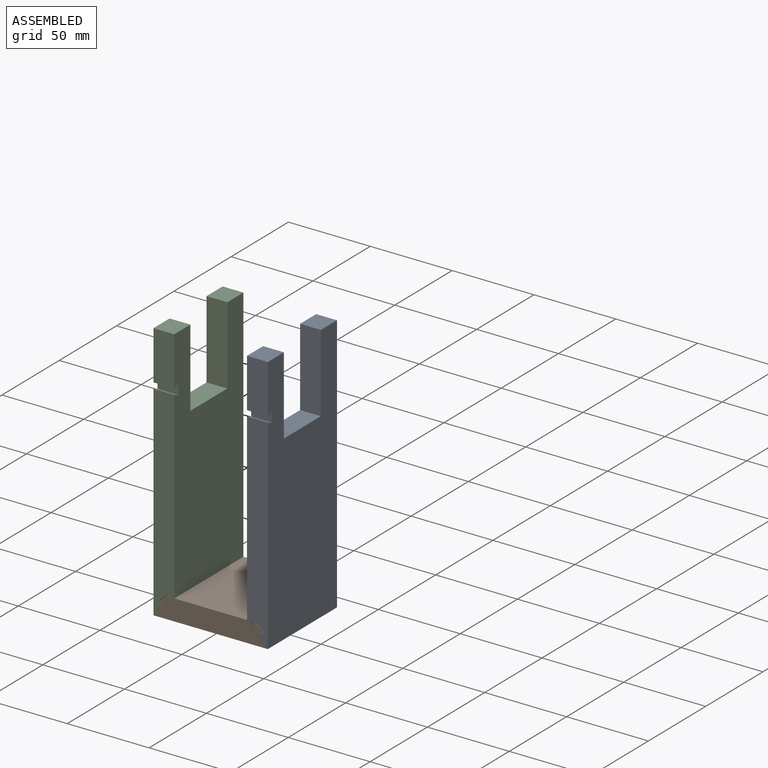
[diagram: assembled view]
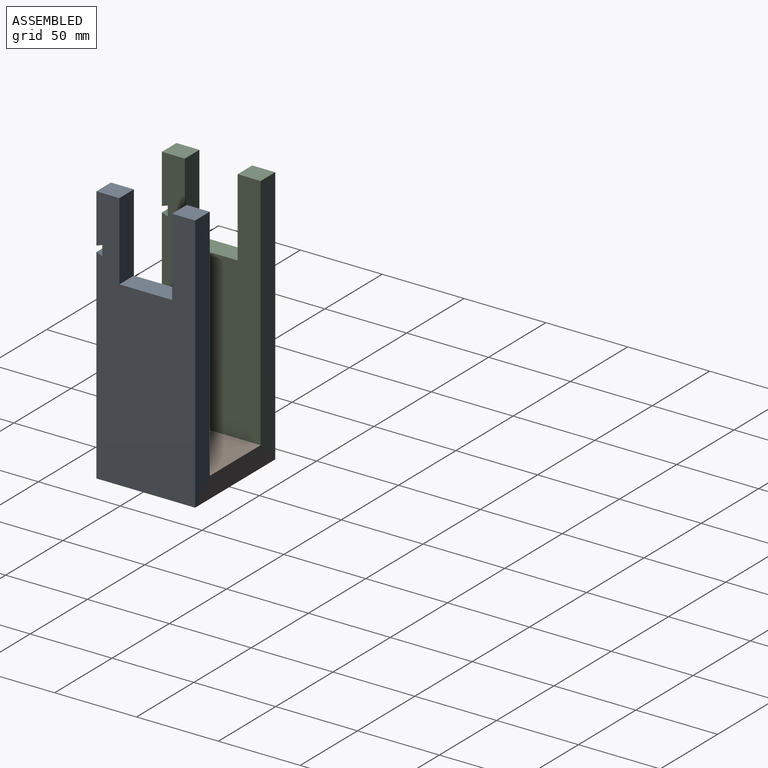
[diagram: assembled view, second angle]
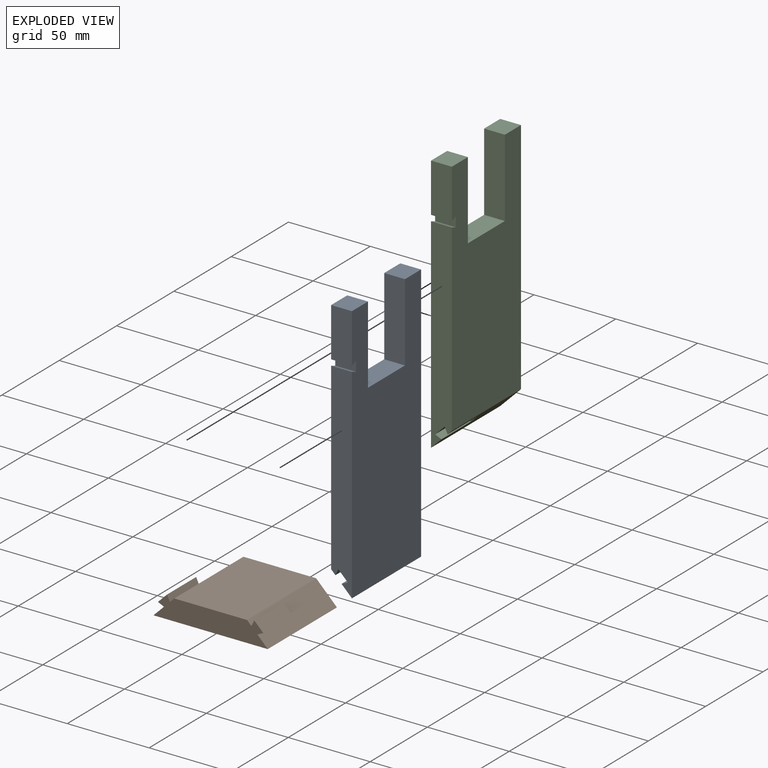
[diagram: exploded view]
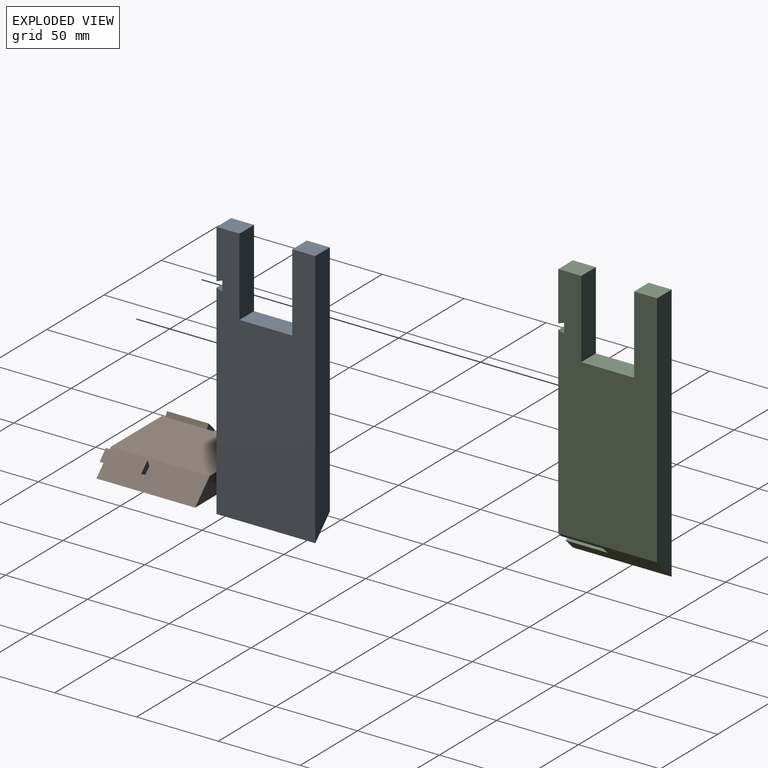
[diagram: exploded view, second angle]
ASSEMBLY  parts=3 mates=4
PART A: 20 faces, bbox 158.6x12.7x60.3 mm
  f0: plane 29.97x12.7mm, normal (0,0,1), area 380.6mm2, adj f1,f6,f12,f18
  f1: plane 145.87x60.33mm, normal (0,-1,0), area 7246.6mm2, adj f0,f2,f3,f4,f5,f7,f8,f9
  f2: plane 125.04x12.7mm, normal (0,0,1), area 1480.7mm2, adj f1,f5,f6,f13,f14,f15,f19
  f3: plane 12.71x0.26mm, normal (-1,0,0), area 3.2mm2, adj f1,f4,f6,f8
  f4: plane 47.63x12.7mm, normal (0,0,-1), area 604.8mm2, adj f1,f3,f6,f12
  f5: plane 60.33x12.7mm, normal (0.71,-0.71,0), area 946.7mm2, adj f1,f2,f6,f11,f13,f15,f16
  f6: plane 158.57x60.33mm, normal (0,1,0), area 8012.8mm2, adj f0,f2,f3,f4,f5,f7,f8,f9
  f7: plane 14.04x12.7mm, normal (-1,0,0), area 178.3mm2, adj f1,f6,f10,f11
  f8: plane 31.76x12.71mm, normal (-1,0,0), area 403.2mm2, adj f1,f3,f6,f9
  f9: plane 12.71x0.26mm, normal (-1,0,0), area 3.2mm2, adj f1,f6,f8,f10
  f10: plane 47.63x12.7mm, normal (0,0,1), area 604.8mm2, adj f1,f6,f7,f9
  f11: plane 158.57x12.7mm, normal (0,0,-1), area 1933.2mm2, adj f1,f5,f6,f7
  f12: plane 14.04x12.7mm, normal (-1,0,0), area 178.3mm2, adj f0,f1,f4,f6
  f13: plane 25.65x3.8mm, normal (-0.91,-0.42,0), area 107.5mm2, adj f2,f5,f14,f16
  f14: plane 25.65x5.8mm, normal (0.71,-0.71,0), area 210.4mm2, adj f2,f13,f15,f16
  f15: plane 25.65x3.8mm, normal (0.42,0.91,0), area 107.5mm2, adj f2,f5,f14,f16
  f16: plane 7.57x7.57mm, normal (0,0,1), area 26.6mm2, adj f5,f13,f14,f15
  f17: plane 12.7x6.14mm, normal (0,0,1), area 78mm2, adj f1,f6,f18,f19
  f18: plane 12.7x3.56mm, normal (0.94,0,-0.34), area 48.1mm2, adj f0,f1,f6,f17
  f19: plane 12.7x3.56mm, normal (-0.94,0,-0.34), area 48.1mm2, adj f1,f2,f6,f17
PART B: 14 faces, bbox 69.9x60.3x13.7 mm
  f0: plane 60.33x12.7mm, normal (0.71,0,0.71), area 954.5mm2, adj f1,f2,f3,f4,f11,f12,f13
  f1: plane 69.85x12.7mm, normal (0,1,0), area 725.8mm2, adj f0,f2,f3,f5
  f2: plane 69.85x60.33mm, normal (0,0,-1), area 4214.1mm2, adj f0,f1,f4,f5
  f3: plane 60.33x44.45mm, normal (0,0,1), area 2681.7mm2, adj f0,f1,f4,f5
  f4: plane 69.85x13.68mm, normal (0,-1,0), area 775.1mm2, adj f0,f2,f3,f5,f6,f7,f8,f10
  f5: plane 60.33x12.7mm, normal (-0.71,0,0.71), area 954.5mm2, adj f1,f2,f3,f4,f6,f8,f9
  f6: plane 25.4x3.67mm, normal (0.91,0,0.42), area 103mm2, adj f4,f5,f7,f9
  f7: plane 25.4x5.55mm, normal (-0.71,0,0.71), area 199.5mm2, adj f4,f6,f8,f9
  f8: plane 25.4x3.67mm, normal (-0.42,0,-0.91), area 103mm2, adj f4,f5,f7,f9
  f9: plane 7.27x7.27mm, normal (0,1,0), area 24.6mm2, adj f5,f6,f7,f8
  f10: plane 25.4x5.55mm, normal (0.71,0,0.71), area 199.5mm2, adj f4,f11,f12,f13
  f11: plane 25.4x3.67mm, normal (-0.91,0,0.42), area 103mm2, adj f0,f4,f10,f13
  f12: plane 25.4x3.67mm, normal (0.42,0,-0.91), area 103mm2, adj f0,f4,f10,f13
  f13: plane 7.27x7.27mm, normal (0,1,0), area 24.6mm2, adj f0,f10,f11,f12
PART C: 20 faces, bbox 158.6x12.7x60.3 mm
  f0: plane 125.04x12.7mm, normal (0,0,-1), area 1480.7mm2, adj f1,f5,f6,f13,f14,f15,f18
  f1: plane 145.87x60.33mm, normal (0,-1,0), area 7246.6mm2, adj f0,f2,f3,f4,f5,f7,f8,f9
  f2: plane 29.97x12.7mm, normal (0,0,-1), area 380.6mm2, adj f1,f6,f7,f19
  f3: plane 12.71x0.26mm, normal (-1,0,0), area 3.2mm2, adj f1,f4,f6,f8
  f4: plane 47.63x12.7mm, normal (0,0,-1), area 604.8mm2, adj f1,f3,f6,f12
  f5: plane 60.33x12.7mm, normal (0.71,-0.71,0), area 946.7mm2, adj f0,f1,f6,f11,f13,f15,f16
  f6: plane 158.57x60.33mm, normal (0,1,0), area 8012.8mm2, adj f0,f2,f3,f4,f5,f7,f8,f9
  f7: plane 14.04x12.7mm, normal (-1,0,0), area 178.3mm2, adj f1,f2,f6,f10
  f8: plane 31.76x12.71mm, normal (-1,0,0), area 403.2mm2, adj f1,f3,f6,f9
  f9: plane 12.71x0.26mm, normal (-1,0,0), area 3.2mm2, adj f1,f6,f8,f10
  f10: plane 47.63x12.7mm, normal (0,0,1), area 604.8mm2, adj f1,f6,f7,f9
  f11: plane 158.57x12.7mm, normal (0,0,1), area 1933.2mm2, adj f1,f5,f6,f12
  f12: plane 14.04x12.7mm, normal (-1,0,0), area 178.3mm2, adj f1,f4,f6,f11
  f13: plane 25.65x3.8mm, normal (0.42,0.91,0), area 107.5mm2, adj f0,f5,f14,f16
  f14: plane 25.65x5.8mm, normal (0.71,-0.71,0), area 210.4mm2, adj f0,f13,f15,f16
  f15: plane 25.65x3.8mm, normal (-0.91,-0.42,0), area 107.5mm2, adj f0,f5,f14,f16
  f16: plane 7.57x7.57mm, normal (0,0,-1), area 26.6mm2, adj f5,f13,f14,f15
  f17: plane 12.7x6.14mm, normal (0,0,-1), area 78mm2, adj f1,f6,f18,f19
  f18: plane 12.7x3.56mm, normal (-0.94,0,0.34), area 48.1mm2, adj f0,f1,f6,f17
  f19: plane 12.7x3.56mm, normal (0.94,0,0.34), area 48.1mm2, adj f1,f2,f6,f17
PLACE A rot(axis=(0.58,0.58,-0.58),120deg) t=(135.02,-64.69,190.26)mm
PLACE B t=(65.17,-64.69,44.39)mm fixed
PLACE C rot(axis=(-0.58,0.58,0.58),120deg) t=(65.17,-125.02,190.26)mm
MATE planar C.f2 <-> B.f4  axis (0,-1,0) through (71.52,-125.02,175.27)mm
MATE planar A.f0 <-> B.f4  axis (0,-1,0) through (128.67,-125.02,175.27)mm
MATE slider B.f4 <-> C.f0  axis (0,-1,0) through (77.87,-125.02,44.39)mm
MATE slider B.f4 <-> A.f2  axis (0,-1,0) through (122.32,-125.02,44.39)mm
